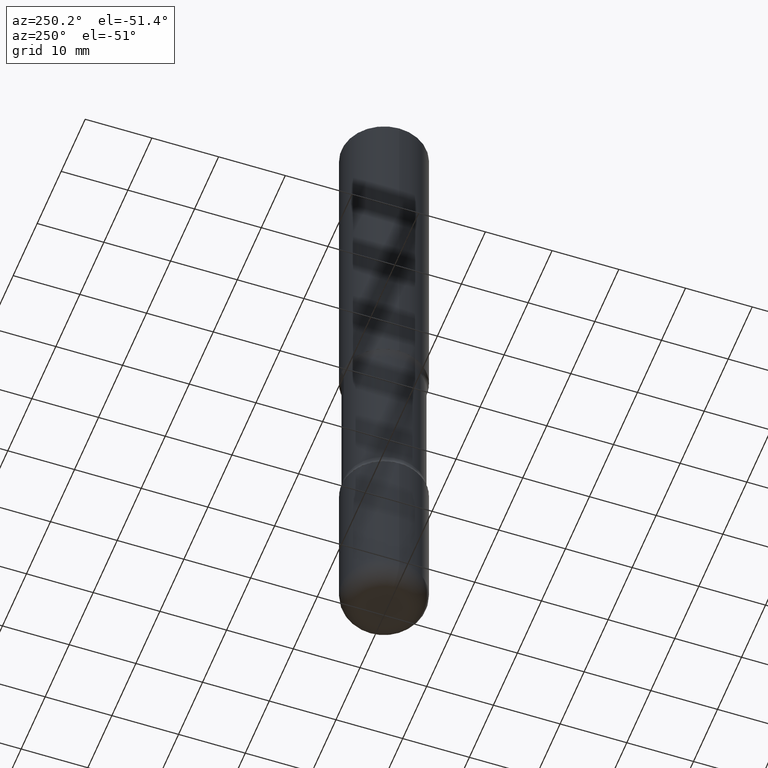
[diagram: clean part render]
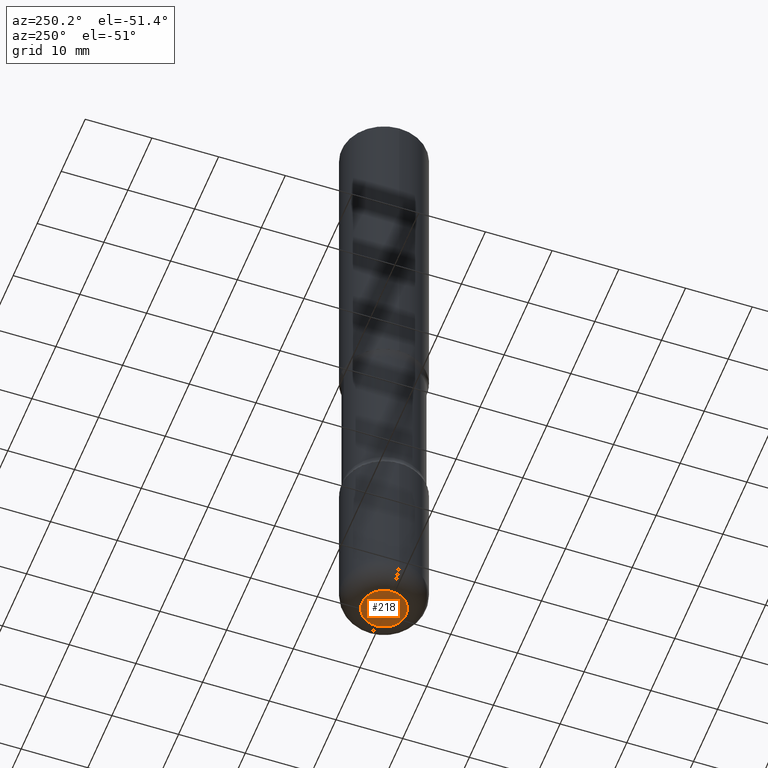
[diagram: same view with one face highlighted and labeled with its STEP entity id]
A machine part, auxiliary view. The second image highlights one B-rep face of the part: STEP entity #218.
In plain terms, the highlighted planar face has unit normal (0, -0, -1).
Its self-contained STEP definition (entity closure, byte-faithful):
#4 = CARTESIAN_POINT ( 'NONE',  ( 9.781875224740547508E-29, -1.396592535537258391E-14, -4.000000000000000888 ) ) ;
#30 = EDGE_CURVE ( 'NONE', #404, #175, #302, .T. ) ;
#35 = PLANE ( 'NONE',  #512 ) ;
#87 = DIRECTION ( 'NONE',  ( 1.000000000000000000, -6.982962677686269077E-15, 0.000000000000000000 ) ) ;
#91 = ORIENTED_EDGE ( 'NONE', *, *, #358, .F. ) ;
#96 = CARTESIAN_POINT ( 'NONE',  ( -0.1300000000000003375, -1.240640527709780404E-14, -4.000000000000000888 ) ) ;
#162 = EDGE_LOOP ( 'NONE', ( #91, #471 ) ) ;
#175 = VERTEX_POINT ( 'NONE', #457 ) ;
#201 = FACE_OUTER_BOUND ( 'NONE', #162, .T. ) ;
#218 = ADVANCED_FACE ( 'NONE', ( #201 ), #35, .T. ) ;
#231 = DIRECTION ( 'NONE',  ( 1.000000000000000000, -6.982962677686269077E-15, 0.000000000000000000 ) ) ;
#235 = CARTESIAN_POINT ( 'NONE',  ( 9.781875224740547508E-29, -1.396592535537258391E-14, -4.000000000000000888 ) ) ;
#250 = DIRECTION ( 'NONE',  ( 2.438088387897960049E-29, -3.491481338843145188E-15, -1.000000000000000000 ) ) ;
#254 = DIRECTION ( 'NONE',  ( -1.000000000000000000, 6.982962677686265922E-15, -4.876176775795935793E-29 ) ) ;
#302 = CIRCLE ( 'NONE', #481, 0.1300000000000003375 ) ;
#341 = CIRCLE ( 'NONE', #369, 0.1300000000000003375 ) ;
#358 = EDGE_CURVE ( 'NONE', #175, #404, #341, .T. ) ;
#369 = AXIS2_PLACEMENT_3D ( 'NONE', #4, #387, #87 ) ;
#387 = DIRECTION ( 'NONE',  ( -2.445468806185136597E-29, 3.491481338843145583E-15, 1.000000000000000000 ) ) ;
#404 = VERTEX_POINT ( 'NONE', #96 ) ;
#438 = DIRECTION ( 'NONE',  ( -2.445468806185136597E-29, 3.491481338843145583E-15, 1.000000000000000000 ) ) ;
#457 = CARTESIAN_POINT ( 'NONE',  ( 0.1300000000000003375, -1.487371050347180047E-14, -4.000000000000000888 ) ) ;
#471 = ORIENTED_EDGE ( 'NONE', *, *, #30, .F. ) ;
#481 = AXIS2_PLACEMENT_3D ( 'NONE', #235, #438, #231 ) ;
#512 = AXIS2_PLACEMENT_3D ( 'NONE', #517, #250, #254 ) ;
#517 = CARTESIAN_POINT ( 'NONE',  ( -1.957443286563838823E-29, -3.077729762407571596E-14, -4.000000000000000000 ) ) ;